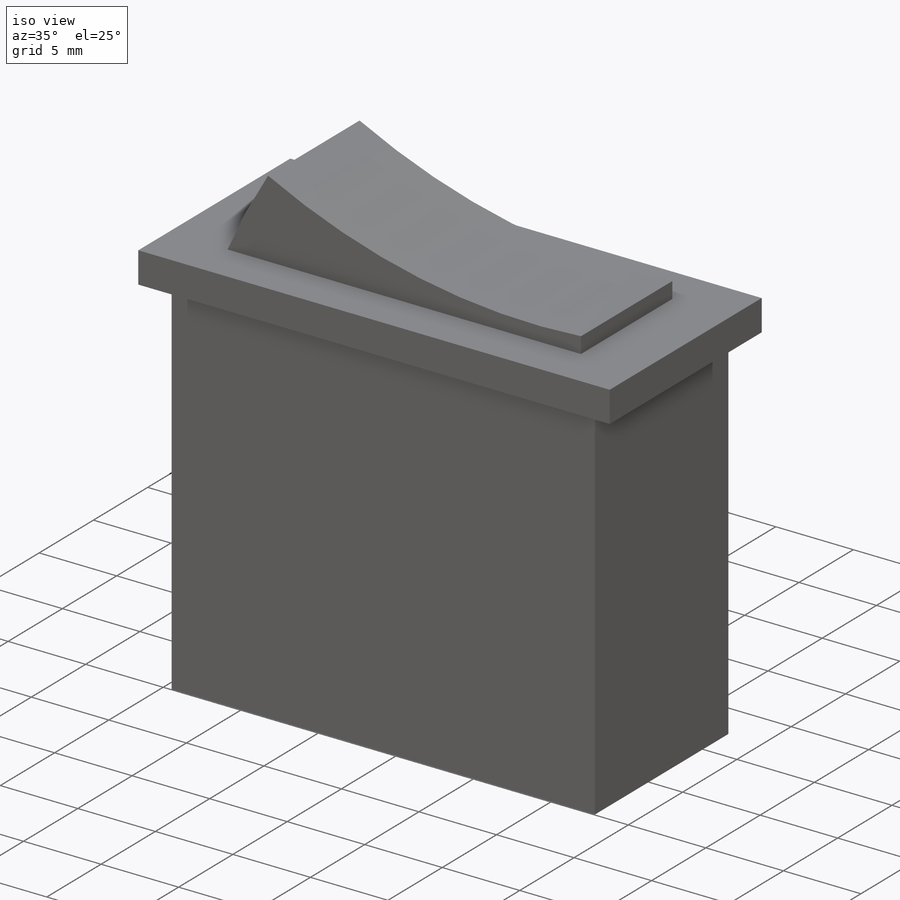
[diagram: iso view]
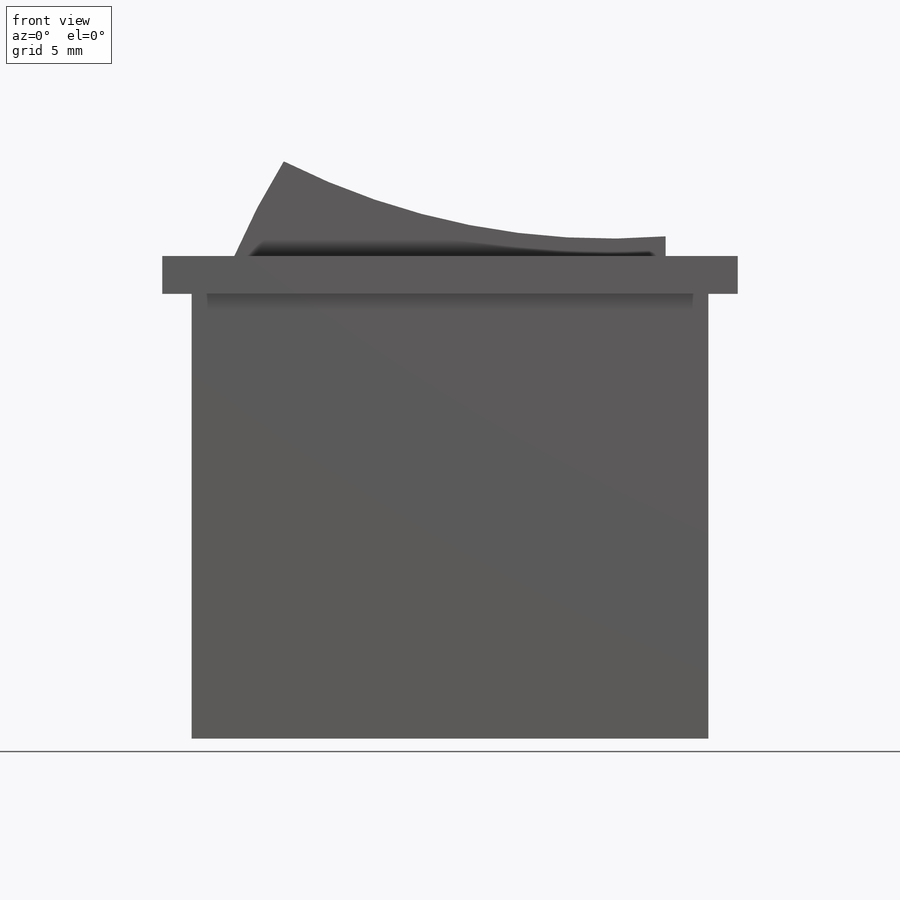
[diagram: front view]
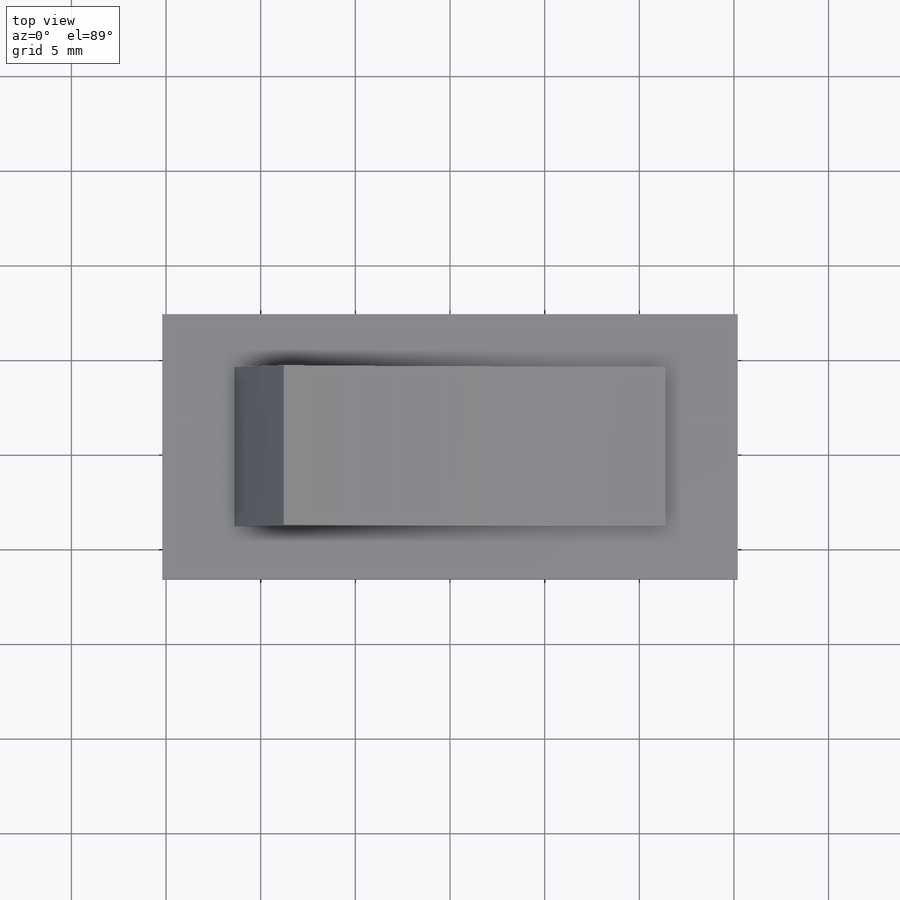
[diagram: top view]
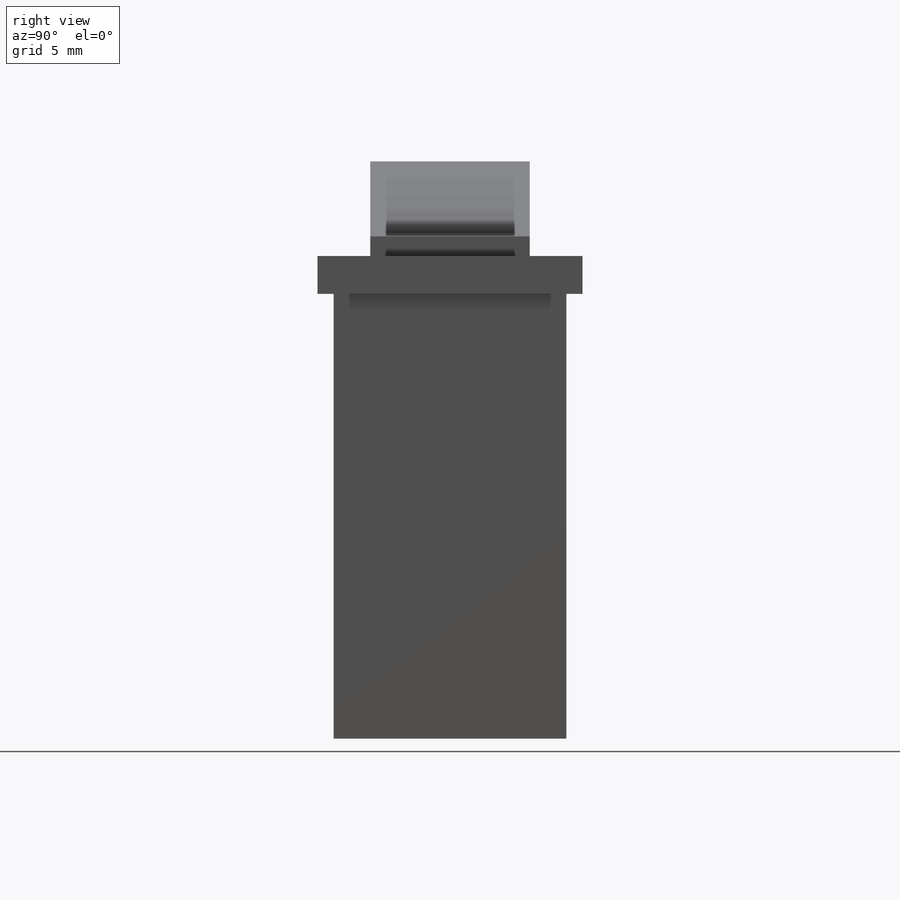
[diagram: right view]
SOLIDWORKS PART (.sldprt)
format: sldprt  version: not decoded by parser v0  size: 137,216 bytes
history: native  units: mm
features: sketch x4, extrude x3, material x1, cut_extrude x1 (+12 scaffold rows collapsed)
feature tree (21):
  scaffold x12  (default folders/planes/origin — collapsed)
  material  "Material <not specified>"
  sketch  "Sketch1"  dims[D1=27.3mm D2=12.3mm]
  extrude  "Boss-Extrude1"  Depth=23.5mm
  sketch  "Sketch3"  dims[c1.D1=30.4mm c1.D2=27.3mm c2.D2=270.0deg c3.D2=14.0mm]
  extrude  "Boss-Extrude2"  Depth=2mm
  sketch  "Sketch4"
  extrude  "Boss-Extrude3"  Depth=5mm
  sketch  "Sketch5"  dims[D1=38.1mm D2=38.1mm]
  cut_extrude  "Cut-Extrude2"  [1 undecoded]
decode coverage: 6 of 8 modeling features carry decoded parameters
note: 1 parameter value undecoded
note: suppression state not decoded; provenance and decode notes live in map.json
